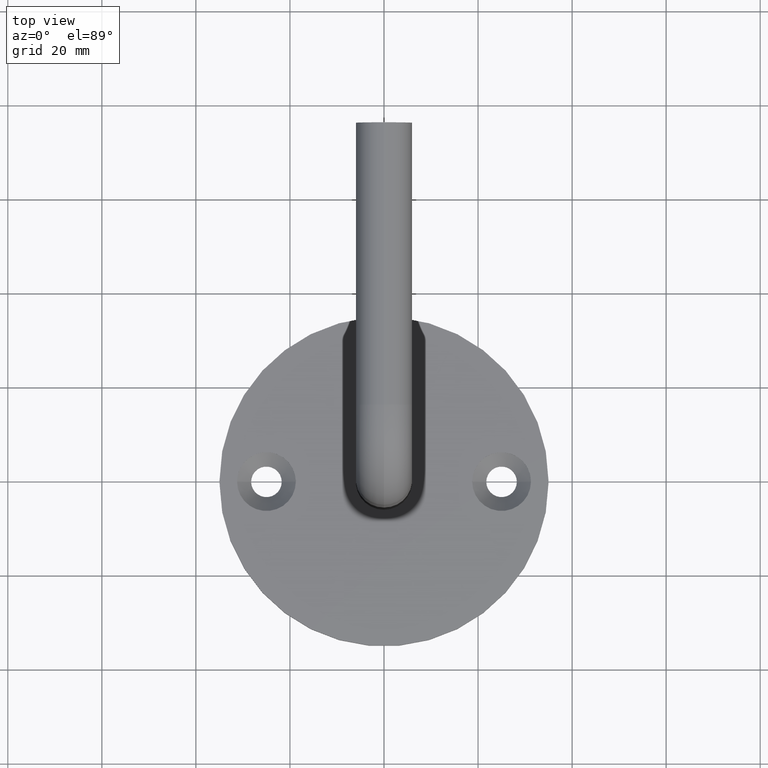
[diagram: clean part render]
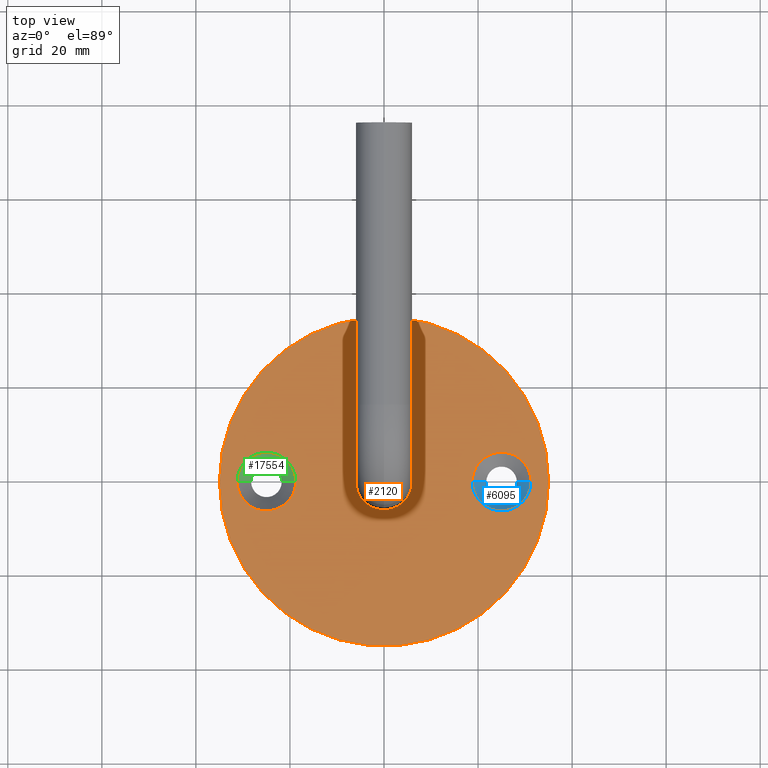
[diagram: same view with three faces highlighted in distinct colors, each labeled with its STEP entity id]
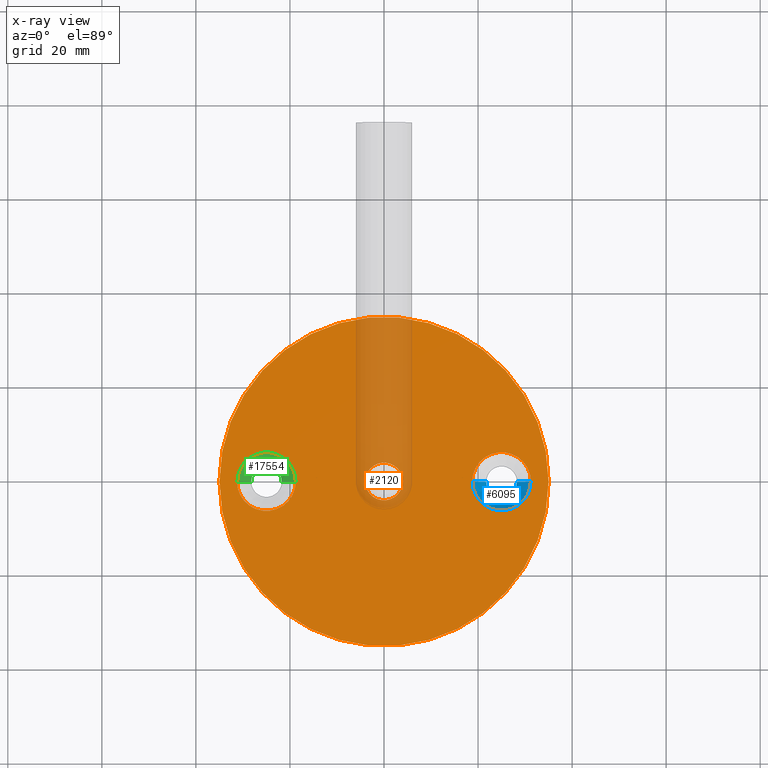
[diagram: x-ray of the same camera — body ghosted, the three highlighted faces saturated]
A machine part, top view with three faces highlighted in distinct colors.
The next image is the same camera in x-ray (body ghosted, the three faces saturated) — at least one of them is partly hidden behind the body in this view.
Their STEP definitions:

[orange] entity #2120 — the highlighted planar face has unit normal (0, 0, 1).
#222 = DIRECTION ( 'NONE',  ( -0.000000000000000000, -0.000000000000000000, -1.000000000000000000 ) ) ;
#271 = EDGE_LOOP ( 'NONE', ( #5224, #7646 ) ) ;
#730 = DIRECTION ( 'NONE',  ( -0.000000000000000000, -0.000000000000000000, -1.000000000000000000 ) ) ;
#920 = EDGE_CURVE ( 'NONE', #18142, #15072, #18212, .T. ) ;
#957 = DIRECTION ( 'NONE',  ( 1.000000000000000000, 0.000000000000000000, 0.000000000000000000 ) ) ;
#1277 = CARTESIAN_POINT ( 'NONE',  ( 0.000000000000000000, 0.000000000000000000, 4.000000000000000000 ) ) ;
#1519 = AXIS2_PLACEMENT_3D ( 'NONE', #11251, #9826, #2758 ) ;
#1635 = CARTESIAN_POINT ( 'NONE',  ( 0.000000000000000000, 0.000000000000000000, 3.999999999999999112 ) ) ;
#2015 = VERTEX_POINT ( 'NONE', #18126 ) ;
#2120 = ADVANCED_FACE ( 'NONE', ( #5939, #13277, #12852, #9746 ), #4225, .T. ) ;
#2354 = CARTESIAN_POINT ( 'NONE',  ( 25.00000000000000000, 0.000000000000000000, 4.000000000000000000 ) ) ;
#2376 = DIRECTION ( 'NONE',  ( 1.000000000000000000, 0.000000000000000000, 0.000000000000000000 ) ) ;
#2607 = CIRCLE ( 'NONE', #1519, 6.249999999999998224 ) ;
#2758 = DIRECTION ( 'NONE',  ( 1.000000000000000000, 0.000000000000000000, 0.000000000000000000 ) ) ;
#3314 = CARTESIAN_POINT ( 'NONE',  ( -25.00000000000000000, 0.000000000000000000, 4.000000000000000000 ) ) ;
#3459 = DIRECTION ( 'NONE',  ( -0.000000000000000000, -0.000000000000000000, 1.000000000000000000 ) ) ;
#3710 = CIRCLE ( 'NONE', #7341, 6.249999999999998224 ) ;
#3775 = DIRECTION ( 'NONE',  ( 1.000000000000000000, 0.000000000000000000, 0.000000000000000000 ) ) ;
#4225 = PLANE ( 'NONE',  #16953 ) ;
#4428 = CARTESIAN_POINT ( 'NONE',  ( -31.25000000000000000, 7.654042494670955634E-16, 4.000000000000000000 ) ) ;
#4507 = CARTESIAN_POINT ( 'NONE',  ( 18.75000000000000355, 7.654042494670955634E-16, 4.000000000000000000 ) ) ;
#4665 = CIRCLE ( 'NONE', #15188, 3.999999999999999112 ) ;
#4896 = DIRECTION ( 'NONE',  ( 1.000000000000000000, 0.000000000000000000, 0.000000000000000000 ) ) ;
#5175 = ORIENTED_EDGE ( 'NONE', *, *, #5544, .T. ) ;
#5218 = DIRECTION ( 'NONE',  ( -0.000000000000000000, -0.000000000000000000, 1.000000000000000000 ) ) ;
#5224 = ORIENTED_EDGE ( 'NONE', *, *, #13965, .F. ) ;
#5285 = EDGE_CURVE ( 'NONE', #9581, #8077, #5557, .T. ) ;
#5544 = EDGE_CURVE ( 'NONE', #2015, #12716, #4665, .T. ) ;
#5557 = CIRCLE ( 'NONE', #14238, 6.249999999999998224 ) ;
#5864 = VERTEX_POINT ( 'NONE', #4428 ) ;
#5909 = CIRCLE ( 'NONE', #12068, 6.249999999999998224 ) ;
#5939 = FACE_BOUND ( 'NONE', #12908, .T. ) ;
#5965 = AXIS2_PLACEMENT_3D ( 'NONE', #15278, #16694, #2376 ) ;
#6042 = CARTESIAN_POINT ( 'NONE',  ( -18.75000000000000355, 0.000000000000000000, 4.000000000000000000 ) ) ;
#6206 = CARTESIAN_POINT ( 'NONE',  ( 0.000000000000000000, 0.000000000000000000, 3.999999999999999112 ) ) ;
#6307 = EDGE_LOOP ( 'NONE', ( #10029, #16451 ) ) ;
#6473 = CARTESIAN_POINT ( 'NONE',  ( -34.99999999999999289, 0.000000000000000000, 4.000000000000000000 ) ) ;
#6559 = CIRCLE ( 'NONE', #15630, 3.999999999999999112 ) ;
#7204 = ORIENTED_EDGE ( 'NONE', *, *, #5285, .F. ) ;
#7341 = AXIS2_PLACEMENT_3D ( 'NONE', #9421, #5218, #957 ) ;
#7646 = ORIENTED_EDGE ( 'NONE', *, *, #16701, .F. ) ;
#8077 = VERTEX_POINT ( 'NONE', #4507 ) ;
#8283 = ORIENTED_EDGE ( 'NONE', *, *, #15271, .T. ) ;
#8417 = DIRECTION ( 'NONE',  ( 1.000000000000000000, 0.000000000000000000, -0.000000000000000000 ) ) ;
#8596 = EDGE_CURVE ( 'NONE', #8077, #9581, #3710, .T. ) ;
#8733 = DIRECTION ( 'NONE',  ( -1.000000000000000000, 0.000000000000000000, 0.000000000000000000 ) ) ;
#9421 = CARTESIAN_POINT ( 'NONE',  ( 25.00000000000000000, 0.000000000000000000, 4.000000000000000000 ) ) ;
#9581 = VERTEX_POINT ( 'NONE', #16100 ) ;
#9607 = CARTESIAN_POINT ( 'NONE',  ( 0.000000000000000000, 0.000000000000000000, 4.000000000000000000 ) ) ;
#9733 = DIRECTION ( 'NONE',  ( 0.000000000000000000, 0.000000000000000000, 1.000000000000000000 ) ) ;
#9746 = FACE_OUTER_BOUND ( 'NONE', #6307, .T. ) ;
#9826 = DIRECTION ( 'NONE',  ( -0.000000000000000000, -0.000000000000000000, 1.000000000000000000 ) ) ;
#10029 = ORIENTED_EDGE ( 'NONE', *, *, #920, .T. ) ;
#10438 = CARTESIAN_POINT ( 'NONE',  ( 34.99999999999999289, 4.286263797015735707E-15, 4.000000000000000000 ) ) ;
#10505 = DIRECTION ( 'NONE',  ( -1.000000000000000000, 0.000000000000000000, 0.000000000000000000 ) ) ;
#11172 = DIRECTION ( 'NONE',  ( 0.000000000000000000, 0.000000000000000000, 1.000000000000000000 ) ) ;
#11251 = CARTESIAN_POINT ( 'NONE',  ( -25.00000000000000000, 0.000000000000000000, 4.000000000000000000 ) ) ;
#11380 = VERTEX_POINT ( 'NONE', #6042 ) ;
#12068 = AXIS2_PLACEMENT_3D ( 'NONE', #3314, #3459, #4896 ) ;
#12269 = DIRECTION ( 'NONE',  ( -0.000000000000000000, -0.000000000000000000, 1.000000000000000000 ) ) ;
#12716 = VERTEX_POINT ( 'NONE', #17006 ) ;
#12852 = FACE_BOUND ( 'NONE', #13843, .T. ) ;
#12908 = EDGE_LOOP ( 'NONE', ( #5175, #8283 ) ) ;
#13277 = FACE_BOUND ( 'NONE', #271, .T. ) ;
#13843 = EDGE_LOOP ( 'NONE', ( #7204, #17660 ) ) ;
#13965 = EDGE_CURVE ( 'NONE', #11380, #5864, #5909, .T. ) ;
#14031 = DIRECTION ( 'NONE',  ( 1.000000000000000000, 0.000000000000000000, 0.000000000000000000 ) ) ;
#14238 = AXIS2_PLACEMENT_3D ( 'NONE', #2354, #12269, #3775 ) ;
#15072 = VERTEX_POINT ( 'NONE', #10438 ) ;
#15188 = AXIS2_PLACEMENT_3D ( 'NONE', #6206, #730, #10505 ) ;
#15271 = EDGE_CURVE ( 'NONE', #12716, #2015, #6559, .T. ) ;
#15278 = CARTESIAN_POINT ( 'NONE',  ( 0.000000000000000000, 0.000000000000000000, 4.000000000000000000 ) ) ;
#15310 = AXIS2_PLACEMENT_3D ( 'NONE', #1277, #11172, #14031 ) ;
#15630 = AXIS2_PLACEMENT_3D ( 'NONE', #1635, #222, #8733 ) ;
#16100 = CARTESIAN_POINT ( 'NONE',  ( 31.25000000000000000, 0.000000000000000000, 4.000000000000000000 ) ) ;
#16451 = ORIENTED_EDGE ( 'NONE', *, *, #17156, .T. ) ;
#16562 = CIRCLE ( 'NONE', #15310, 34.99999999999999289 ) ;
#16694 = DIRECTION ( 'NONE',  ( 0.000000000000000000, 0.000000000000000000, 1.000000000000000000 ) ) ;
#16701 = EDGE_CURVE ( 'NONE', #5864, #11380, #2607, .T. ) ;
#16953 = AXIS2_PLACEMENT_3D ( 'NONE', #9607, #9733, #8417 ) ;
#17006 = CARTESIAN_POINT ( 'NONE',  ( 3.999999999999999112, 4.898587196589411843E-16, 3.999999999999999112 ) ) ;
#17156 = EDGE_CURVE ( 'NONE', #15072, #18142, #16562, .T. ) ;
#17660 = ORIENTED_EDGE ( 'NONE', *, *, #8596, .F. ) ;
#18126 = CARTESIAN_POINT ( 'NONE',  ( -3.999999999999999112, 0.000000000000000000, 3.999999999999999112 ) ) ;
#18142 = VERTEX_POINT ( 'NONE', #6473 ) ;
#18212 = CIRCLE ( 'NONE', #5965, 34.99999999999999289 ) ;

[blue] entity #6095 — the highlighted conical surface has half-angle 45 deg.
#1745 = LINE ( 'NONE', #18238, #11509 ) ;
#1862 = AXIS2_PLACEMENT_3D ( 'NONE', #4796, #14696, #3159 ) ;
#2511 = VERTEX_POINT ( 'NONE', #5966 ) ;
#2797 = EDGE_LOOP ( 'NONE', ( #17400, #8455, #10063, #12032 ) ) ;
#3086 = CONICAL_SURFACE ( 'NONE', #1862, 6.249999999999998224, 0.7853981633974482790 ) ;
#3159 = DIRECTION ( 'NONE',  ( 1.000000000000000000, 0.000000000000000000, 0.000000000000000000 ) ) ;
#4367 = AXIS2_PLACEMENT_3D ( 'NONE', #16568, #10854, #15078 ) ;
#4796 = CARTESIAN_POINT ( 'NONE',  ( 25.00000000000000000, 0.000000000000000000, 3.500000000000000000 ) ) ;
#5753 = EDGE_CURVE ( 'NONE', #17581, #10930, #9537, .T. ) ;
#5966 = CARTESIAN_POINT ( 'NONE',  ( 21.75000000000000355, 3.980102097228897245E-16, 0.5000000000000008882 ) ) ;
#6095 = ADVANCED_FACE ( 'NONE', ( #13292 ), #3086, .F. ) ;
#6699 = EDGE_CURVE ( 'NONE', #2511, #17581, #14846, .T. ) ;
#7216 = AXIS2_PLACEMENT_3D ( 'NONE', #15476, #9640, #12758 ) ;
#7228 = CIRCLE ( 'NONE', #4367, 3.249999999999999556 ) ;
#8455 = ORIENTED_EDGE ( 'NONE', *, *, #6699, .T. ) ;
#8816 = VECTOR ( 'NONE', #16743, 1000.000000000000000 ) ;
#9537 = CIRCLE ( 'NONE', #7216, 6.249999999999998224 ) ;
#9640 = DIRECTION ( 'NONE',  ( -0.000000000000000000, -0.000000000000000000, 1.000000000000000000 ) ) ;
#10063 = ORIENTED_EDGE ( 'NONE', *, *, #5753, .T. ) ;
#10605 = EDGE_CURVE ( 'NONE', #14731, #10930, #1745, .T. ) ;
#10854 = DIRECTION ( 'NONE',  ( -0.000000000000000000, -0.000000000000000000, 1.000000000000000000 ) ) ;
#10930 = VERTEX_POINT ( 'NONE', #17084 ) ;
#11038 = CARTESIAN_POINT ( 'NONE',  ( 28.25000000000000000, 0.000000000000000000, 0.5000000000000008882 ) ) ;
#11509 = VECTOR ( 'NONE', #13773, 1000.000000000000000 ) ;
#11650 = CARTESIAN_POINT ( 'NONE',  ( 18.75000000000000355, 7.654042494670955634E-16, 3.500000000000000000 ) ) ;
#12032 = ORIENTED_EDGE ( 'NONE', *, *, #10605, .F. ) ;
#12758 = DIRECTION ( 'NONE',  ( 1.000000000000000000, 0.000000000000000000, 0.000000000000000000 ) ) ;
#13292 = FACE_OUTER_BOUND ( 'NONE', #2797, .T. ) ;
#13773 = DIRECTION ( 'NONE',  ( 0.7071067811865474617, 0.000000000000000000, 0.7071067811865475727 ) ) ;
#14696 = DIRECTION ( 'NONE',  ( -0.000000000000000000, -0.000000000000000000, 1.000000000000000000 ) ) ;
#14731 = VERTEX_POINT ( 'NONE', #11038 ) ;
#14846 = LINE ( 'NONE', #16809, #8816 ) ;
#15078 = DIRECTION ( 'NONE',  ( 1.000000000000000000, 0.000000000000000000, 0.000000000000000000 ) ) ;
#15476 = CARTESIAN_POINT ( 'NONE',  ( 25.00000000000000000, 0.000000000000000000, 3.500000000000000000 ) ) ;
#15527 = EDGE_CURVE ( 'NONE', #2511, #14731, #7228, .T. ) ;
#16568 = CARTESIAN_POINT ( 'NONE',  ( 25.00000000000000000, 0.000000000000000000, 0.5000000000000008882 ) ) ;
#16743 = DIRECTION ( 'NONE',  ( -0.7071067811865474617, 8.659560562354931626E-17, 0.7071067811865475727 ) ) ;
#16809 = CARTESIAN_POINT ( 'NONE',  ( 18.75000000000000355, 7.654042494670955634E-16, 3.500000000000000000 ) ) ;
#17084 = CARTESIAN_POINT ( 'NONE',  ( 31.25000000000000000, 0.000000000000000000, 3.500000000000000000 ) ) ;
#17400 = ORIENTED_EDGE ( 'NONE', *, *, #15527, .F. ) ;
#17581 = VERTEX_POINT ( 'NONE', #11650 ) ;
#18238 = CARTESIAN_POINT ( 'NONE',  ( 31.25000000000000000, 0.000000000000000000, 3.500000000000000000 ) ) ;

[green] entity #17554 — the highlighted conical surface has half-angle 45 deg.
#155 = DIRECTION ( 'NONE',  ( -0.000000000000000000, -0.000000000000000000, 1.000000000000000000 ) ) ;
#1259 = VERTEX_POINT ( 'NONE', #11704 ) ;
#2462 = ORIENTED_EDGE ( 'NONE', *, *, #4251, .F. ) ;
#2663 = CARTESIAN_POINT ( 'NONE',  ( -25.00000000000000000, 0.000000000000000000, 3.500000000000000000 ) ) ;
#2888 = CARTESIAN_POINT ( 'NONE',  ( -25.00000000000000000, 0.000000000000000000, 0.5000000000000008882 ) ) ;
#4099 = DIRECTION ( 'NONE',  ( -0.000000000000000000, -0.000000000000000000, 1.000000000000000000 ) ) ;
#4251 = EDGE_CURVE ( 'NONE', #7871, #16492, #6441, .T. ) ;
#4387 = DIRECTION ( 'NONE',  ( -0.000000000000000000, -0.000000000000000000, 1.000000000000000000 ) ) ;
#4415 = DIRECTION ( 'NONE',  ( 1.000000000000000000, 0.000000000000000000, 0.000000000000000000 ) ) ;
#5158 = ORIENTED_EDGE ( 'NONE', *, *, #14089, .T. ) ;
#5263 = EDGE_LOOP ( 'NONE', ( #7209, #2462, #16228, #5158 ) ) ;
#5504 = DIRECTION ( 'NONE',  ( 1.000000000000000000, 0.000000000000000000, 0.000000000000000000 ) ) ;
#6201 = CARTESIAN_POINT ( 'NONE',  ( -28.25000000000000000, 3.980102097228897245E-16, 0.5000000000000008882 ) ) ;
#6441 = CIRCLE ( 'NONE', #7927, 3.249999999999999556 ) ;
#6622 = EDGE_CURVE ( 'NONE', #16492, #7793, #15512, .T. ) ;
#7209 = ORIENTED_EDGE ( 'NONE', *, *, #6622, .F. ) ;
#7734 = VECTOR ( 'NONE', #18231, 1000.000000000000000 ) ;
#7793 = VERTEX_POINT ( 'NONE', #11889 ) ;
#7871 = VERTEX_POINT ( 'NONE', #10709 ) ;
#7927 = AXIS2_PLACEMENT_3D ( 'NONE', #2888, #4387, #14299 ) ;
#9007 = VECTOR ( 'NONE', #15311, 1000.000000000000000 ) ;
#10709 = CARTESIAN_POINT ( 'NONE',  ( -21.75000000000000355, 0.000000000000000000, 0.5000000000000008882 ) ) ;
#11261 = AXIS2_PLACEMENT_3D ( 'NONE', #12747, #155, #4415 ) ;
#11648 = FACE_OUTER_BOUND ( 'NONE', #5263, .T. ) ;
#11704 = CARTESIAN_POINT ( 'NONE',  ( -18.75000000000000355, 0.000000000000000000, 3.500000000000000000 ) ) ;
#11889 = CARTESIAN_POINT ( 'NONE',  ( -31.25000000000000000, 7.654042494670955634E-16, 3.500000000000000000 ) ) ;
#12585 = CARTESIAN_POINT ( 'NONE',  ( -18.75000000000000355, 0.000000000000000000, 3.500000000000000000 ) ) ;
#12747 = CARTESIAN_POINT ( 'NONE',  ( -25.00000000000000000, 0.000000000000000000, 3.500000000000000000 ) ) ;
#13954 = CARTESIAN_POINT ( 'NONE',  ( -31.25000000000000000, 7.654042494670955634E-16, 3.500000000000000000 ) ) ;
#13985 = AXIS2_PLACEMENT_3D ( 'NONE', #2663, #4099, #5504 ) ;
#14089 = EDGE_CURVE ( 'NONE', #1259, #7793, #18369, .T. ) ;
#14299 = DIRECTION ( 'NONE',  ( 1.000000000000000000, 0.000000000000000000, 0.000000000000000000 ) ) ;
#15311 = DIRECTION ( 'NONE',  ( 0.7071067811865474617, 0.000000000000000000, 0.7071067811865475727 ) ) ;
#15512 = LINE ( 'NONE', #13954, #7734 ) ;
#16092 = CONICAL_SURFACE ( 'NONE', #11261, 6.249999999999998224, 0.7853981633974482790 ) ;
#16200 = EDGE_CURVE ( 'NONE', #7871, #1259, #17776, .T. ) ;
#16228 = ORIENTED_EDGE ( 'NONE', *, *, #16200, .T. ) ;
#16492 = VERTEX_POINT ( 'NONE', #6201 ) ;
#17554 = ADVANCED_FACE ( 'NONE', ( #11648 ), #16092, .F. ) ;
#17776 = LINE ( 'NONE', #12585, #9007 ) ;
#18231 = DIRECTION ( 'NONE',  ( -0.7071067811865474617, 8.659560562354931626E-17, 0.7071067811865475727 ) ) ;
#18369 = CIRCLE ( 'NONE', #13985, 6.249999999999998224 ) ;